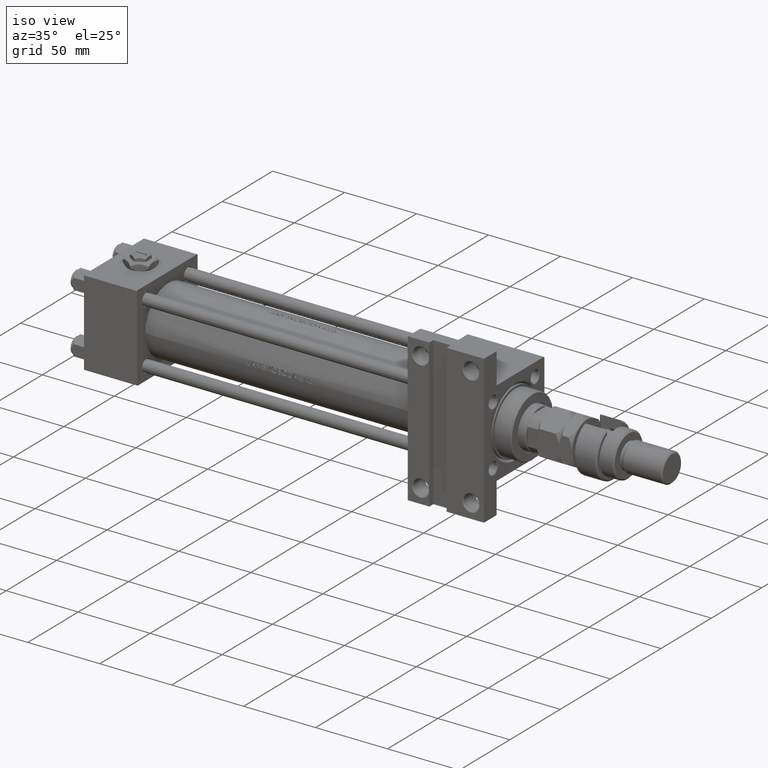
[diagram: clean part render]
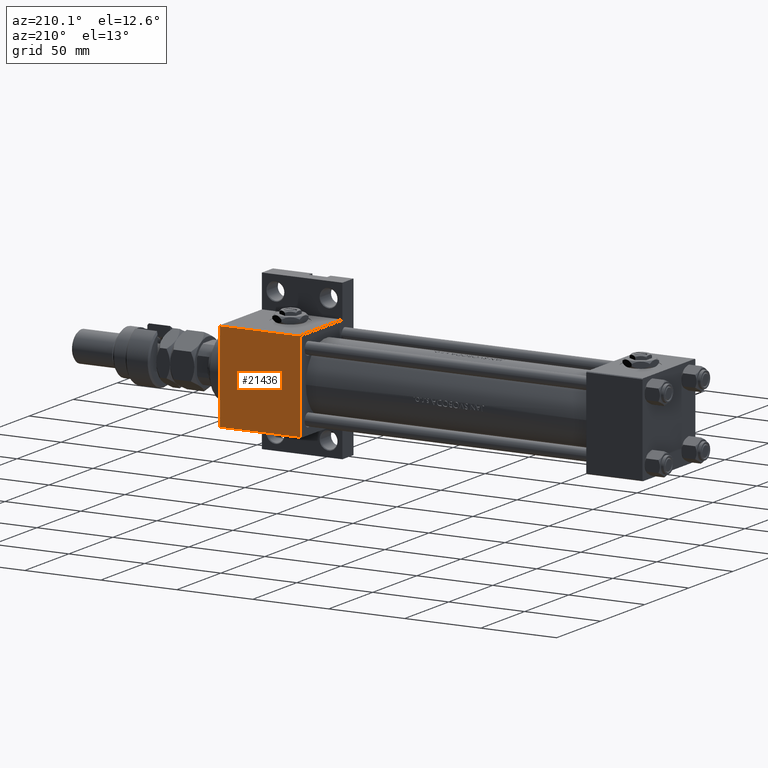
[diagram: tour spotlight — one face highlighted and labeled with its STEP entity id]
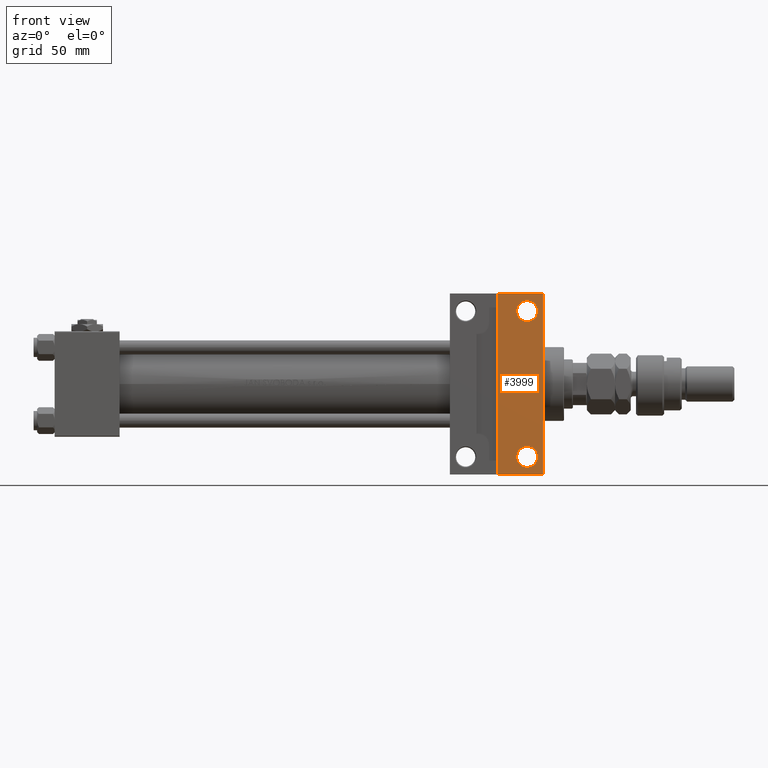
[diagram: tour spotlight — one face highlighted and labeled with its STEP entity id]
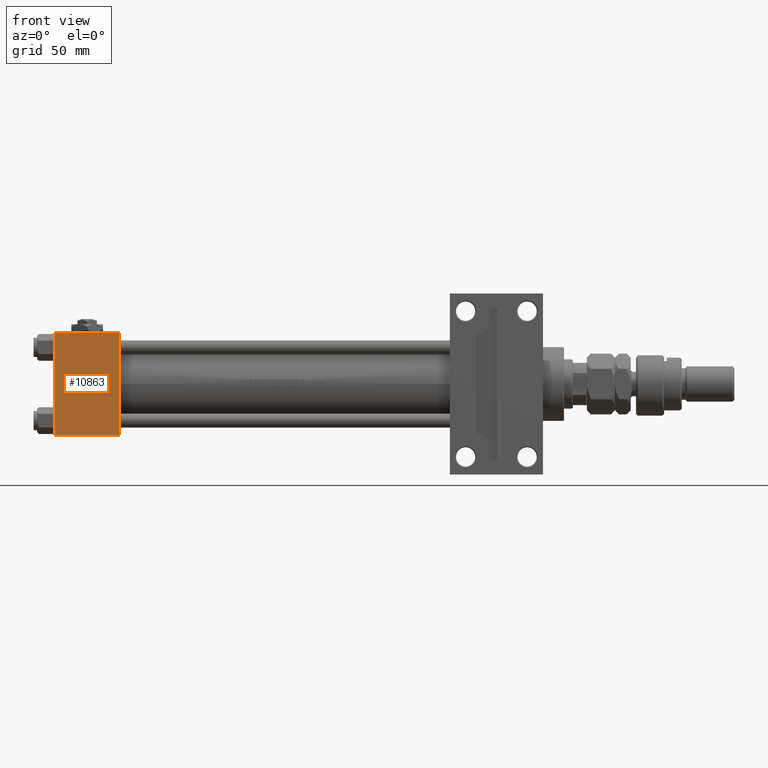
[diagram: tour spotlight — one face highlighted and labeled with its STEP entity id]
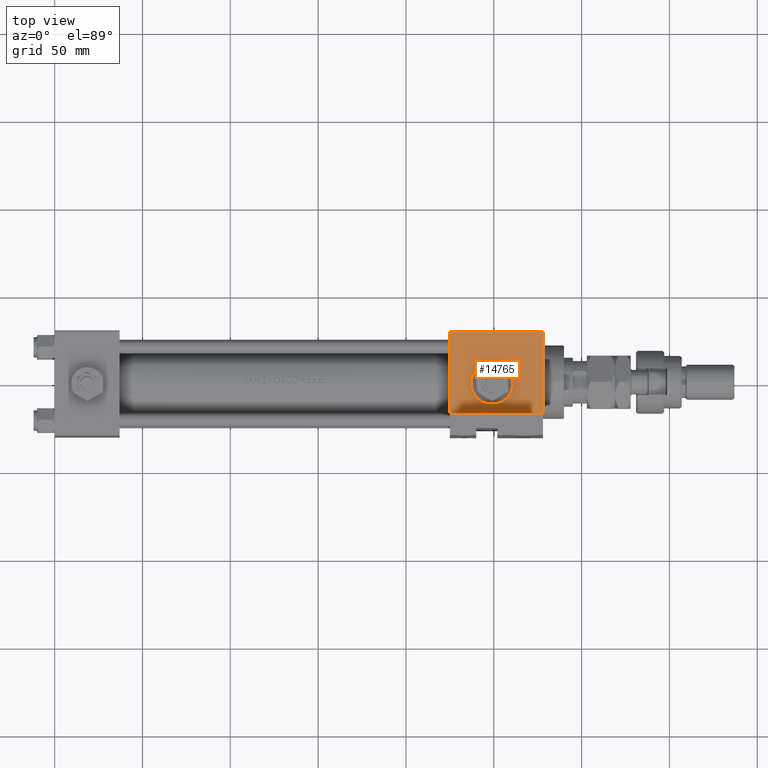
[diagram: tour spotlight — one face highlighted and labeled with its STEP entity id]
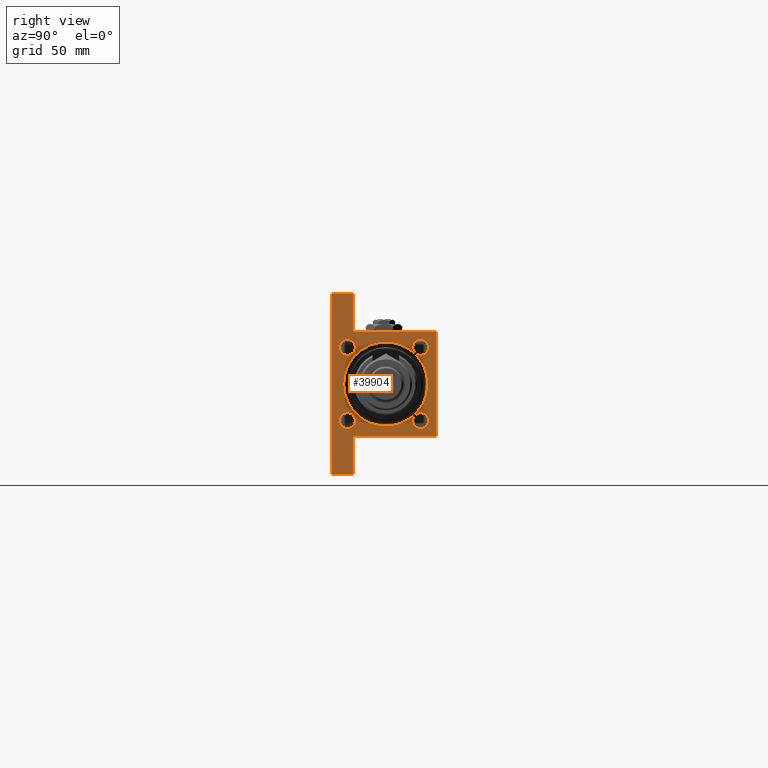
[diagram: tour spotlight — one face highlighted and labeled with its STEP entity id]
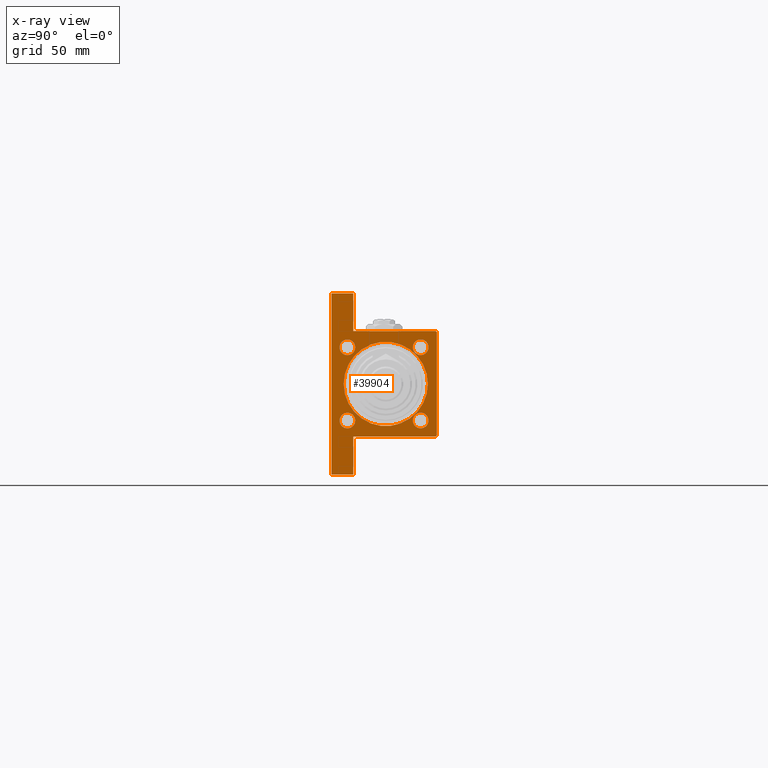
[diagram: x-ray of the same camera — body ghosted, this tour face saturated]
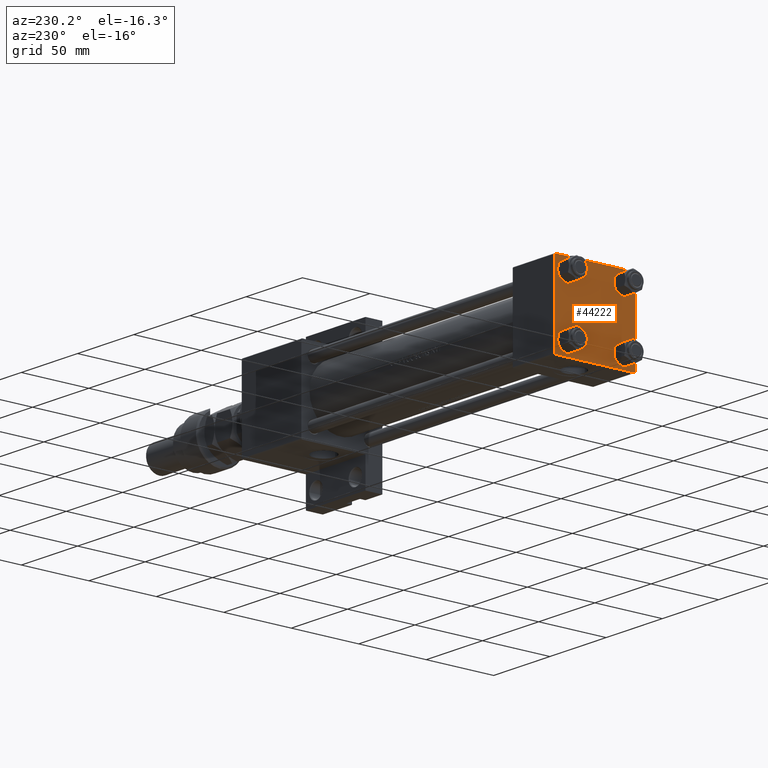
[diagram: tour spotlight — one face highlighted and labeled with its STEP entity id]
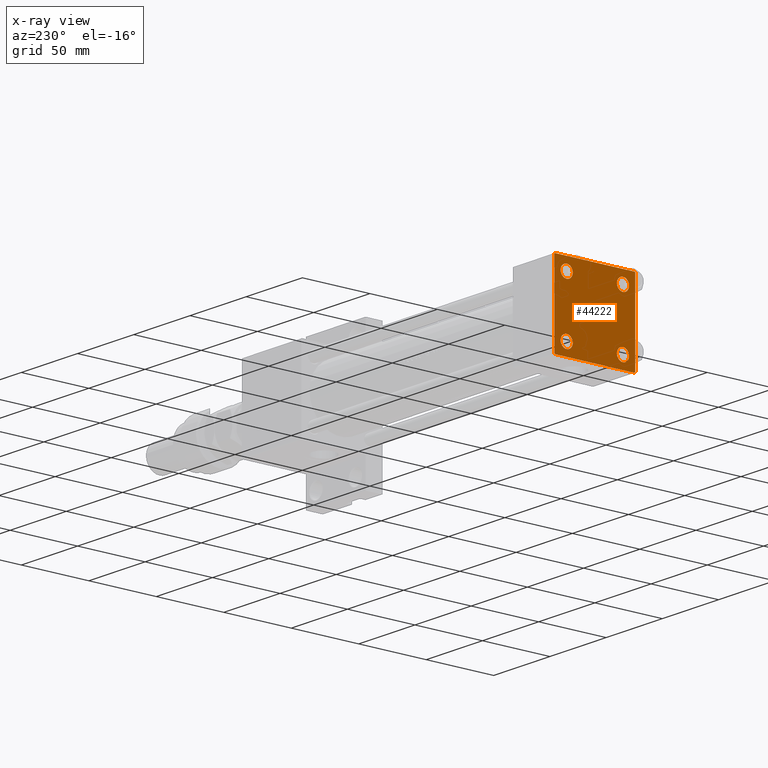
[diagram: x-ray of the same camera — body ghosted, this tour face saturated]
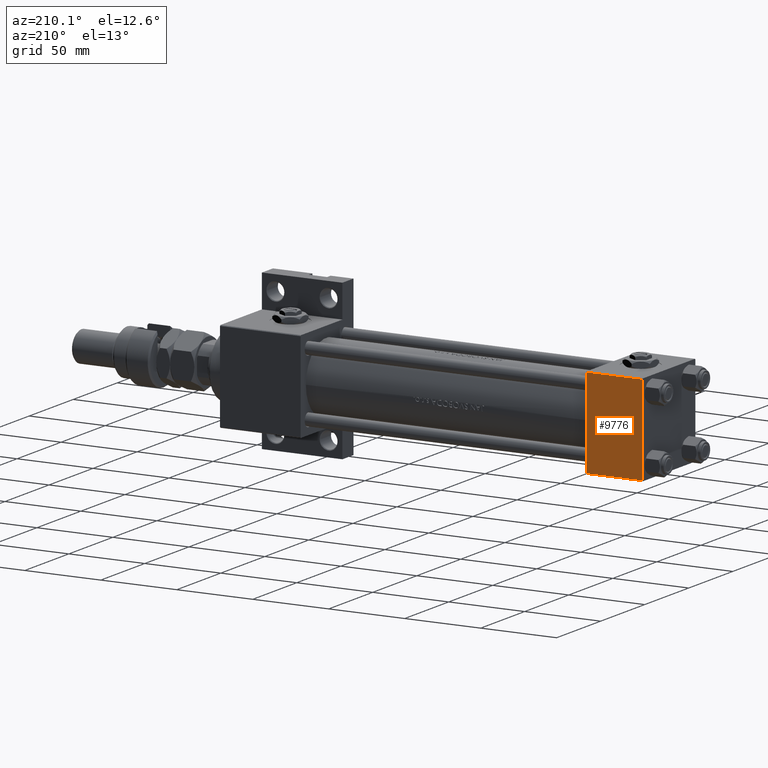
[diagram: tour spotlight — one face highlighted and labeled with its STEP entity id]
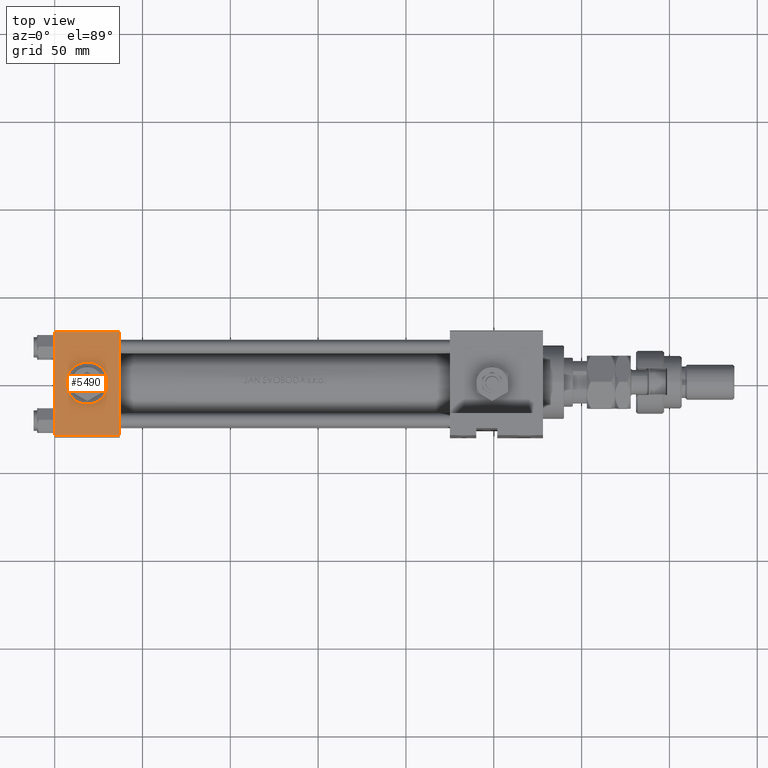
[diagram: tour spotlight — one face highlighted and labeled with its STEP entity id]
A machine part: a face-by-face anatomy tour. The part has 1300 B-rep faces; the first image is the clean iso view, then the 8 largest visible faces are spotlighted one at a time (largest first), each with its STEP entity span.

Face 1 — auxiliary view, entity #21436. In plain terms, the highlighted planar face has unit normal (0, -1, -0).
Definition (entity closure, byte-faithful):
#1885 = CARTESIAN_POINT ( 'NONE',  ( 278.0000000000000000, 29.50000000000000000, 30.00000000000000000 ) ) ;
#2104 = DIRECTION ( 'NONE',  ( 0.000000000000000000, -1.000000000000000000, -1.156482317317871478E-16 ) ) ;
#4670 = LINE ( 'NONE', #37523, #21446 ) ;
#4790 = CARTESIAN_POINT ( 'NONE',  ( 225.0000000000000000, -29.49999999999997158, 29.99999999999999289 ) ) ;
#5782 = FACE_OUTER_BOUND ( 'NONE', #25797, .T. ) ;
#8276 = EDGE_CURVE ( 'NONE', #43974, #30196, #47156, .T. ) ;
#9867 = ORIENTED_EDGE ( 'NONE', *, *, #8276, .T. ) ;
#10015 = DIRECTION ( 'NONE',  ( 0.000000000000000000, -1.000000000000000000, -1.156482317317871478E-16 ) ) ;
#12008 = EDGE_CURVE ( 'NONE', #29269, #19114, #4670, .T. ) ;
#14108 = LINE ( 'NONE', #30654, #40555 ) ;
#17477 = CARTESIAN_POINT ( 'NONE',  ( 278.0000000000000000, 30.00000000000000000, 30.00000000000000000 ) ) ;
#19114 = VERTEX_POINT ( 'NONE', #43355 ) ;
#19383 = ORIENTED_EDGE ( 'NONE', *, *, #12008, .T. ) ;
#21436 = ADVANCED_FACE ( 'NONE', ( #5782 ), #30735, .F. ) ;
#21446 = VECTOR ( 'NONE', #45907, 1000.000000000000000 ) ;
#21977 = LINE ( 'NONE', #47688, #39338 ) ;
#22280 = ORIENTED_EDGE ( 'NONE', *, *, #27105, .F. ) ;
#25494 = CARTESIAN_POINT ( 'NONE',  ( 278.0000000000000000, -29.49999999999997158, 29.99999999999999289 ) ) ;
#25797 = EDGE_LOOP ( 'NONE', ( #22280, #19383, #37007, #9867 ) ) ;
#26569 = CARTESIAN_POINT ( 'NONE',  ( 278.0000000000000000, -29.49999999999997158, 29.99999999999999289 ) ) ;
#27105 = EDGE_CURVE ( 'NONE', #29269, #30196, #21977, .T. ) ;
#29269 = VERTEX_POINT ( 'NONE', #1885 ) ;
#30196 = VERTEX_POINT ( 'NONE', #25494 ) ;
#30654 = CARTESIAN_POINT ( 'NONE',  ( 225.0000000000000000, 30.00000000000000000, 30.00000000000000000 ) ) ;
#30735 = PLANE ( 'NONE',  #52043 ) ;
#34030 = DIRECTION ( 'NONE',  ( 0.000000000000000000, 1.156482317317871478E-16, -1.000000000000000000 ) ) ;
#37007 = ORIENTED_EDGE ( 'NONE', *, *, #39747, .T. ) ;
#37523 = CARTESIAN_POINT ( 'NONE',  ( 225.0000000000000000, 29.50000000000000000, 30.00000000000000000 ) ) ;
#39338 = VECTOR ( 'NONE', #2104, 1000.000000000000000 ) ;
#39747 = EDGE_CURVE ( 'NONE', #19114, #43974, #14108, .T. ) ;
#40555 = VECTOR ( 'NONE', #10015, 1000.000000000000000 ) ;
#42668 = DIRECTION ( 'NONE',  ( 0.000000000000000000, 1.000000000000000000, 1.156482317317871478E-16 ) ) ;
#43355 = CARTESIAN_POINT ( 'NONE',  ( 225.0000000000000000, 29.50000000000000000, 30.00000000000000000 ) ) ;
#43974 = VERTEX_POINT ( 'NONE', #4790 ) ;
#45907 = DIRECTION ( 'NONE',  ( -1.000000000000000000, 0.000000000000000000, 0.000000000000000000 ) ) ;
#46193 = VECTOR ( 'NONE', #50166, 1000.000000000000000 ) ;
#47156 = LINE ( 'NONE', #26569, #46193 ) ;
#47688 = CARTESIAN_POINT ( 'NONE',  ( 278.0000000000000000, 30.00000000000000000, 30.00000000000000000 ) ) ;
#50166 = DIRECTION ( 'NONE',  ( 1.000000000000000000, 0.000000000000000000, 0.000000000000000000 ) ) ;
#52043 = AXIS2_PLACEMENT_3D ( 'NONE', #17477, #34030, #42668 ) ;

Face 2 — front view, entity #3999. In plain terms, the highlighted planar face has unit normal (0, -1, -0).
Definition (entity closure, byte-faithful):
#190 = EDGE_CURVE ( 'NONE', #47218, #46126, #6132, .T. ) ;
#558 = VERTEX_POINT ( 'NONE', #29587 ) ;
#3123 = EDGE_CURVE ( 'NONE', #49464, #558, #44926, .T. ) ;
#3363 = ORIENTED_EDGE ( 'NONE', *, *, #40572, .T. ) ;
#3626 = CARTESIAN_POINT ( 'NONE',  ( 278.0000000000000000, 51.49999999999996447, -29.99999999999999645 ) ) ;
#3999 = ADVANCED_FACE ( 'NONE', ( #37337, #41106, #50048 ), #20248, .T. ) ;
#4136 = VERTEX_POINT ( 'NONE', #39457 ) ;
#5420 = CARTESIAN_POINT ( 'NONE',  ( 225.0000000000000000, -51.50000000000002132, -29.99999999999999645 ) ) ;
#6132 = LINE ( 'NONE', #43554, #27807 ) ;
#7057 = ORIENTED_EDGE ( 'NONE', *, *, #44245, .T. ) ;
#7393 = DIRECTION ( 'NONE',  ( 1.000000000000000000, -2.618450529776311274E-16, 0.000000000000000000 ) ) ;
#10067 = ORIENTED_EDGE ( 'NONE', *, *, #3123, .F. ) ;
#10770 = ORIENTED_EDGE ( 'NONE', *, *, #37875, .T. ) ;
#12362 = DIRECTION ( 'NONE',  ( -0.000000000000000000, -1.000000000000000000, -0.000000000000000000 ) ) ;
#12579 = EDGE_CURVE ( 'NONE', #46126, #558, #15096, .T. ) ;
#13295 = DIRECTION ( 'NONE',  ( -0.000000000000000000, -1.156482317317871478E-16, 1.000000000000000000 ) ) ;
#15096 = LINE ( 'NONE', #5420, #19728 ) ;
#16031 = VERTEX_POINT ( 'NONE', #23907 ) ;
#16172 = CARTESIAN_POINT ( 'NONE',  ( 252.0000000000000000, -51.49999999999997158, -29.99999999999999645 ) ) ;
#17110 = CARTESIAN_POINT ( 'NONE',  ( 269.0000000000000000, -41.50000000000000000, -30.00000000000000000 ) ) ;
#18072 = CARTESIAN_POINT ( 'NONE',  ( 274.9994999999999550, 41.50000000000000000, -29.99999999999999289 ) ) ;
#18857 = CIRCLE ( 'NONE', #30973, 5.999499999999907907 ) ;
#19613 = LINE ( 'NONE', #53180, #43348 ) ;
#19728 = VECTOR ( 'NONE', #48157, 1000.000000000000000 ) ;
#20170 = ORIENTED_EDGE ( 'NONE', *, *, #190, .T. ) ;
#20248 = PLANE ( 'NONE',  #21060 ) ;
#20459 = CARTESIAN_POINT ( 'NONE',  ( 278.0000000000000000, -51.50000000000002132, -29.99999999999999645 ) ) ;
#20723 = AXIS2_PLACEMENT_3D ( 'NONE', #49871, #48794, #36614 ) ;
#21060 = AXIS2_PLACEMENT_3D ( 'NONE', #53547, #49245, #28365 ) ;
#21794 = ORIENTED_EDGE ( 'NONE', *, *, #45103, .T. ) ;
#22232 = DIRECTION ( 'NONE',  ( 0.000000000000000000, 1.000000000000000000, 0.000000000000000000 ) ) ;
#23780 = DIRECTION ( 'NONE',  ( -0.000000000000000000, -1.156482317317871478E-16, 1.000000000000000000 ) ) ;
#23907 = CARTESIAN_POINT ( 'NONE',  ( 274.9994999999999550, -41.50000000000000000, -30.00000000000000000 ) ) ;
#24680 = AXIS2_PLACEMENT_3D ( 'NONE', #41685, #49563, #37916 ) ;
#27807 = VECTOR ( 'NONE', #42487, 1000.000000000000000 ) ;
#28365 = DIRECTION ( 'NONE',  ( 0.000000000000000000, 1.000000000000000000, 1.156482317317871478E-16 ) ) ;
#28525 = EDGE_LOOP ( 'NONE', ( #3363, #21794 ) ) ;
#29033 = AXIS2_PLACEMENT_3D ( 'NONE', #44382, #23780, #33003 ) ;
#29587 = CARTESIAN_POINT ( 'NONE',  ( 252.0000000000000000, -51.49999999999997158, -29.99999999999999645 ) ) ;
#30031 = CARTESIAN_POINT ( 'NONE',  ( 263.0005000000001019, -41.50000000000000000, -30.00000000000000000 ) ) ;
#30348 = ORIENTED_EDGE ( 'NONE', *, *, #45910, .T. ) ;
#30729 = EDGE_LOOP ( 'NONE', ( #30348, #10770 ) ) ;
#30973 = AXIS2_PLACEMENT_3D ( 'NONE', #17110, #13295, #22232 ) ;
#32777 = EDGE_LOOP ( 'NONE', ( #10067, #7057, #20170, #41717 ) ) ;
#33003 = DIRECTION ( 'NONE',  ( 0.000000000000000000, 1.000000000000000000, 0.000000000000000000 ) ) ;
#36139 = VERTEX_POINT ( 'NONE', #18072 ) ;
#36614 = DIRECTION ( 'NONE',  ( 0.000000000000000000, 1.000000000000000000, 0.000000000000000000 ) ) ;
#36785 = CIRCLE ( 'NONE', #24680, 5.999499999999907907 ) ;
#36964 = VERTEX_POINT ( 'NONE', #30031 ) ;
#37185 = CIRCLE ( 'NONE', #20723, 5.999499999999907907 ) ;
#37337 = FACE_OUTER_BOUND ( 'NONE', #32777, .T. ) ;
#37875 = EDGE_CURVE ( 'NONE', #16031, #36964, #18857, .T. ) ;
#37916 = DIRECTION ( 'NONE',  ( 0.000000000000000000, 1.000000000000000000, 0.000000000000000000 ) ) ;
#39457 = CARTESIAN_POINT ( 'NONE',  ( 263.0005000000001019, 41.50000000000000000, -29.99999999999999289 ) ) ;
#40572 = EDGE_CURVE ( 'NONE', #4136, #36139, #37185, .T. ) ;
#41106 = FACE_BOUND ( 'NONE', #30729, .T. ) ;
#41685 = CARTESIAN_POINT ( 'NONE',  ( 269.0000000000000000, 41.50000000000000000, -29.99999999999999289 ) ) ;
#41717 = ORIENTED_EDGE ( 'NONE', *, *, #12579, .T. ) ;
#42039 = CIRCLE ( 'NONE', #29033, 5.999499999999907907 ) ;
#42487 = DIRECTION ( 'NONE',  ( 0.000000000000000000, -1.000000000000000000, -1.156482317317871478E-16 ) ) ;
#43348 = VECTOR ( 'NONE', #7393, 1000.000000000000000 ) ;
#43554 = CARTESIAN_POINT ( 'NONE',  ( 278.0000000000000000, 30.00000000000000000, -29.99999999999999289 ) ) ;
#44245 = EDGE_CURVE ( 'NONE', #49464, #47218, #19613, .T. ) ;
#44382 = CARTESIAN_POINT ( 'NONE',  ( 269.0000000000000000, -41.50000000000000000, -30.00000000000000000 ) ) ;
#44926 = LINE ( 'NONE', #16172, #53013 ) ;
#45103 = EDGE_CURVE ( 'NONE', #36139, #4136, #36785, .T. ) ;
#45910 = EDGE_CURVE ( 'NONE', #36964, #16031, #42039, .T. ) ;
#46126 = VERTEX_POINT ( 'NONE', #20459 ) ;
#46607 = CARTESIAN_POINT ( 'NONE',  ( 252.0000000000000000, 51.49999999999997868, -29.99999999999999645 ) ) ;
#47218 = VERTEX_POINT ( 'NONE', #3626 ) ;
#48157 = DIRECTION ( 'NONE',  ( -1.000000000000000000, -0.000000000000000000, -0.000000000000000000 ) ) ;
#48794 = DIRECTION ( 'NONE',  ( -0.000000000000000000, -1.156482317317871478E-16, 1.000000000000000000 ) ) ;
#49245 = DIRECTION ( 'NONE',  ( 0.000000000000000000, 1.156482317317871478E-16, -1.000000000000000000 ) ) ;
#49464 = VERTEX_POINT ( 'NONE', #46607 ) ;
#49563 = DIRECTION ( 'NONE',  ( -0.000000000000000000, -1.156482317317871478E-16, 1.000000000000000000 ) ) ;
#49871 = CARTESIAN_POINT ( 'NONE',  ( 269.0000000000000000, 41.50000000000000000, -29.99999999999999289 ) ) ;
#50048 = FACE_BOUND ( 'NONE', #28525, .T. ) ;
#53013 = VECTOR ( 'NONE', #12362, 1000.000000000000000 ) ;
#53180 = CARTESIAN_POINT ( 'NONE',  ( 225.0000000000000000, 51.49999999999997868, -29.99999999999999645 ) ) ;
#53547 = CARTESIAN_POINT ( 'NONE',  ( 278.0000000000000000, 30.00000000000000000, -29.99999999999999289 ) ) ;

Face 3 — front view, entity #10863. In plain terms, the highlighted planar face has unit normal (0, -1, -0).
Definition (entity closure, byte-faithful):
#1445 = VECTOR ( 'NONE', #18067, 1000.000000000000000 ) ;
#4714 = CARTESIAN_POINT ( 'NONE',  ( 37.00000000000000000, 29.49999999999997868, -30.00000000000000000 ) ) ;
#5686 = VECTOR ( 'NONE', #47071, 1000.000000000000000 ) ;
#6707 = CARTESIAN_POINT ( 'NONE',  ( 0.000000000000000000, -29.50000000000000000, -30.00000000000000711 ) ) ;
#10863 = ADVANCED_FACE ( 'NONE', ( #26769 ), #22695, .T. ) ;
#14002 = CARTESIAN_POINT ( 'NONE',  ( 0.000000000000000000, 29.99999999999999289, -30.00000000000000000 ) ) ;
#16279 = CARTESIAN_POINT ( 'NONE',  ( 37.00000000000000000, 29.99999999999999289, -30.00000000000000000 ) ) ;
#16387 = VERTEX_POINT ( 'NONE', #16800 ) ;
#16747 = CARTESIAN_POINT ( 'NONE',  ( 0.000000000000000000, 29.49999999999997868, -30.00000000000000000 ) ) ;
#16800 = CARTESIAN_POINT ( 'NONE',  ( 37.00000000000000000, 29.49999999999997868, -30.00000000000000000 ) ) ;
#18067 = DIRECTION ( 'NONE',  ( -1.000000000000000000, 0.000000000000000000, 0.000000000000000000 ) ) ;
#19818 = AXIS2_PLACEMENT_3D ( 'NONE', #47893, #26242, #38979 ) ;
#20113 = VERTEX_POINT ( 'NONE', #6707 ) ;
#21073 = LINE ( 'NONE', #50593, #1445 ) ;
#21805 = EDGE_LOOP ( 'NONE', ( #42219, #49339, #39501, #38595 ) ) ;
#22171 = EDGE_CURVE ( 'NONE', #46914, #16387, #33776, .T. ) ;
#22695 = PLANE ( 'NONE',  #19818 ) ;
#26242 = DIRECTION ( 'NONE',  ( 0.000000000000000000, 1.156482317317871725E-16, -1.000000000000000000 ) ) ;
#26769 = FACE_OUTER_BOUND ( 'NONE', #21805, .T. ) ;
#28466 = LINE ( 'NONE', #16279, #32842 ) ;
#31446 = EDGE_CURVE ( 'NONE', #46914, #20113, #39212, .T. ) ;
#32842 = VECTOR ( 'NONE', #53649, 1000.000000000000000 ) ;
#32965 = DIRECTION ( 'NONE',  ( 1.000000000000000000, 0.000000000000000000, 0.000000000000000000 ) ) ;
#33776 = LINE ( 'NONE', #4714, #44321 ) ;
#38595 = ORIENTED_EDGE ( 'NONE', *, *, #52779, .T. ) ;
#38979 = DIRECTION ( 'NONE',  ( 0.000000000000000000, 1.000000000000000000, 1.156482317317871725E-16 ) ) ;
#39212 = LINE ( 'NONE', #14002, #5686 ) ;
#39501 = ORIENTED_EDGE ( 'NONE', *, *, #40471, .T. ) ;
#40471 = EDGE_CURVE ( 'NONE', #16387, #42370, #28466, .T. ) ;
#42219 = ORIENTED_EDGE ( 'NONE', *, *, #31446, .F. ) ;
#42370 = VERTEX_POINT ( 'NONE', #50556 ) ;
#44321 = VECTOR ( 'NONE', #32965, 1000.000000000000000 ) ;
#46914 = VERTEX_POINT ( 'NONE', #16747 ) ;
#47071 = DIRECTION ( 'NONE',  ( 0.000000000000000000, -1.000000000000000000, -1.156482317317871725E-16 ) ) ;
#47893 = CARTESIAN_POINT ( 'NONE',  ( 37.00000000000000000, 29.99999999999999289, -30.00000000000000000 ) ) ;
#49339 = ORIENTED_EDGE ( 'NONE', *, *, #22171, .T. ) ;
#50556 = CARTESIAN_POINT ( 'NONE',  ( 37.00000000000000000, -29.50000000000000000, -30.00000000000000711 ) ) ;
#50593 = CARTESIAN_POINT ( 'NONE',  ( 0.000000000000000000, -29.50000000000001066, -30.00000000000000711 ) ) ;
#52779 = EDGE_CURVE ( 'NONE', #42370, #20113, #21073, .T. ) ;
#53649 = DIRECTION ( 'NONE',  ( 0.000000000000000000, -1.000000000000000000, -1.156482317317871725E-16 ) ) ;

Face 4 — top view, entity #14765. In plain terms, the highlighted planar face has unit normal (0, 0, -1).
Definition (entity closure, byte-faithful):
#485 = ORIENTED_EDGE ( 'NONE', *, *, #28839, .F. ) ;
#965 = ORIENTED_EDGE ( 'NONE', *, *, #33346, .T. ) ;
#1071 = LINE ( 'NONE', #17651, #4545 ) ;
#3594 = FACE_BOUND ( 'NONE', #46987, .T. ) ;
#3680 = EDGE_CURVE ( 'NONE', #52999, #46395, #1071, .T. ) ;
#4289 = EDGE_CURVE ( 'NONE', #5619, #23383, #20936, .T. ) ;
#4545 = VECTOR ( 'NONE', #13562, 1000.000000000000000 ) ;
#4760 = CARTESIAN_POINT ( 'NONE',  ( 278.0000000000000000, -30.00000000000000000, 29.49999999999999289 ) ) ;
#5143 = CARTESIAN_POINT ( 'NONE',  ( 225.0000000000000000, -30.00000000000000000, 29.99999999999999289 ) ) ;
#5619 = VERTEX_POINT ( 'NONE', #45161 ) ;
#8851 = ORIENTED_EDGE ( 'NONE', *, *, #46047, .T. ) ;
#9759 = CARTESIAN_POINT ( 'NONE',  ( 278.0000000000000000, -30.00000000000000000, -17.49999999999998224 ) ) ;
#10079 = DIRECTION ( 'NONE',  ( 0.000000000000000000, 0.000000000000000000, -1.000000000000000000 ) ) ;
#10805 = CIRCLE ( 'NONE', #16032, 12.00000000000003197 ) ;
#12236 = CARTESIAN_POINT ( 'NONE',  ( 249.0000000000000000, -30.00000000000000000, 12.00000000000003197 ) ) ;
#12289 = FACE_OUTER_BOUND ( 'NONE', #18809, .T. ) ;
#13562 = DIRECTION ( 'NONE',  ( 0.000000000000000000, 0.000000000000000000, -1.000000000000000000 ) ) ;
#13778 = AXIS2_PLACEMENT_3D ( 'NONE', #49444, #24784, #48621 ) ;
#14082 = LINE ( 'NONE', #5143, #30783 ) ;
#14589 = DIRECTION ( 'NONE',  ( 0.000000000000000000, 0.000000000000000000, -1.000000000000000000 ) ) ;
#14765 = ADVANCED_FACE ( 'NONE', ( #3594, #12289 ), #16097, .F. ) ;
#16032 = AXIS2_PLACEMENT_3D ( 'NONE', #31936, #40320, #14589 ) ;
#16097 = PLANE ( 'NONE',  #13778 ) ;
#17651 = CARTESIAN_POINT ( 'NONE',  ( 278.0000000000000000, -30.00000000000000000, 29.99999999999999289 ) ) ;
#18809 = EDGE_LOOP ( 'NONE', ( #45569, #8851, #965, #45929 ) ) ;
#20801 = DIRECTION ( 'NONE',  ( -1.000000000000000000, 0.000000000000000000, 0.000000000000000000 ) ) ;
#20936 = CIRCLE ( 'NONE', #51213, 12.00000000000003197 ) ;
#21449 = LINE ( 'NONE', #38001, #32764 ) ;
#21709 = DIRECTION ( 'NONE',  ( 0.000000000000000000, 0.000000000000000000, -1.000000000000000000 ) ) ;
#23383 = VERTEX_POINT ( 'NONE', #12236 ) ;
#24461 = VERTEX_POINT ( 'NONE', #35005 ) ;
#24784 = DIRECTION ( 'NONE',  ( -0.000000000000000000, 1.000000000000000000, 0.000000000000000000 ) ) ;
#25293 = VERTEX_POINT ( 'NONE', #31882 ) ;
#25401 = LINE ( 'NONE', #4760, #28171 ) ;
#28171 = VECTOR ( 'NONE', #20801, 1000.000000000000000 ) ;
#28839 = EDGE_CURVE ( 'NONE', #23383, #5619, #10805, .T. ) ;
#30783 = VECTOR ( 'NONE', #21709, 1000.000000000000000 ) ;
#31870 = CARTESIAN_POINT ( 'NONE',  ( 278.0000000000000000, -30.00000000000000000, 29.49999999999999289 ) ) ;
#31882 = CARTESIAN_POINT ( 'NONE',  ( 225.0000000000000000, -30.00000000000000000, 29.49999999999999289 ) ) ;
#31936 = CARTESIAN_POINT ( 'NONE',  ( 249.0000000000000000, -30.00000000000000000, 0.000000000000000000 ) ) ;
#32764 = VECTOR ( 'NONE', #33941, 1000.000000000000000 ) ;
#33346 = EDGE_CURVE ( 'NONE', #25293, #24461, #14082, .T. ) ;
#33941 = DIRECTION ( 'NONE',  ( 1.000000000000000000, -1.309225264888155637E-16, 0.000000000000000000 ) ) ;
#35005 = CARTESIAN_POINT ( 'NONE',  ( 225.0000000000000000, -30.00000000000000000, -17.49999999999999645 ) ) ;
#38001 = CARTESIAN_POINT ( 'NONE',  ( 225.0000000000000000, -30.00000000000000000, -17.49999999999999645 ) ) ;
#38751 = EDGE_CURVE ( 'NONE', #24461, #46395, #21449, .T. ) ;
#39654 = DIRECTION ( 'NONE',  ( 0.000000000000000000, -1.000000000000000000, -8.673617379884036705E-17 ) ) ;
#40320 = DIRECTION ( 'NONE',  ( 0.000000000000000000, -1.000000000000000000, -8.673617379884036705E-17 ) ) ;
#43976 = CARTESIAN_POINT ( 'NONE',  ( 249.0000000000000000, -30.00000000000000000, 0.000000000000000000 ) ) ;
#45161 = CARTESIAN_POINT ( 'NONE',  ( 249.0000000000000000, -30.00000000000000000, -12.00000000000003197 ) ) ;
#45569 = ORIENTED_EDGE ( 'NONE', *, *, #3680, .F. ) ;
#45918 = ORIENTED_EDGE ( 'NONE', *, *, #4289, .F. ) ;
#45929 = ORIENTED_EDGE ( 'NONE', *, *, #38751, .T. ) ;
#46047 = EDGE_CURVE ( 'NONE', #52999, #25293, #25401, .T. ) ;
#46395 = VERTEX_POINT ( 'NONE', #9759 ) ;
#46987 = EDGE_LOOP ( 'NONE', ( #45918, #485 ) ) ;
#48621 = DIRECTION ( 'NONE',  ( 0.000000000000000000, -0.000000000000000000, 1.000000000000000000 ) ) ;
#49444 = CARTESIAN_POINT ( 'NONE',  ( 278.0000000000000000, -30.00000000000000000, 29.99999999999999289 ) ) ;
#51213 = AXIS2_PLACEMENT_3D ( 'NONE', #43976, #39654, #10079 ) ;
#52999 = VERTEX_POINT ( 'NONE', #31870 ) ;

Face 5 — right view, entity #39904. An x-ray twin of the same camera follows (body ghosted, this face saturated) — the face is partly hidden behind the body. In plain terms, the highlighted planar face has unit normal (-1, 0, -0).
Definition (entity closure, byte-faithful):
#12 = VERTEX_POINT ( 'NONE', #48461 ) ;
#190 = EDGE_CURVE ( 'NONE', #47218, #46126, #6132, .T. ) ;
#1071 = LINE ( 'NONE', #17651, #4545 ) ;
#1199 = CARTESIAN_POINT ( 'NONE',  ( 278.0000000000000000, 20.84999999999999787, 20.85000000000000142 ) ) ;
#1241 = CARTESIAN_POINT ( 'NONE',  ( 278.0000000000000000, -20.85000000000000142, -16.34999999999999787 ) ) ;
#1513 = VECTOR ( 'NONE', #29371, 1000.000000000000114 ) ;
#1557 = VERTEX_POINT ( 'NONE', #23412 ) ;
#1764 = CARTESIAN_POINT ( 'NONE',  ( 278.0000000000000000, 20.84999999999999787, -25.35000000000000497 ) ) ;
#1885 = CARTESIAN_POINT ( 'NONE',  ( 278.0000000000000000, 29.50000000000000000, 30.00000000000000000 ) ) ;
#2101 = CARTESIAN_POINT ( 'NONE',  ( 278.0000000000000000, 20.84999999999999787, -16.34999999999999787 ) ) ;
#2104 = DIRECTION ( 'NONE',  ( 0.000000000000000000, -1.000000000000000000, -1.156482317317871478E-16 ) ) ;
#3205 = CIRCLE ( 'NONE', #33594, 4.500000000000003553 ) ;
#3297 = VECTOR ( 'NONE', #44264, 1000.000000000000000 ) ;
#3310 = LINE ( 'NONE', #48601, #18656 ) ;
#3626 = CARTESIAN_POINT ( 'NONE',  ( 278.0000000000000000, 51.49999999999996447, -29.99999999999999645 ) ) ;
#3627 = ORIENTED_EDGE ( 'NONE', *, *, #38361, .T. ) ;
#3680 = EDGE_CURVE ( 'NONE', #52999, #46395, #1071, .T. ) ;
#3805 = ORIENTED_EDGE ( 'NONE', *, *, #32238, .T. ) ;
#4233 = CARTESIAN_POINT ( 'NONE',  ( 278.0000000000000000, 0.000000000000000000, 1.000000000000007772 ) ) ;
#4304 = VERTEX_POINT ( 'NONE', #23390 ) ;
#4545 = VECTOR ( 'NONE', #13562, 1000.000000000000000 ) ;
#4794 = ORIENTED_EDGE ( 'NONE', *, *, #36760, .T. ) ;
#4871 = AXIS2_PLACEMENT_3D ( 'NONE', #11683, #40187, #36134 ) ;
#5016 = DIRECTION ( 'NONE',  ( -1.000000000000000000, 0.000000000000000000, -0.000000000000000000 ) ) ;
#5879 = VERTEX_POINT ( 'NONE', #39944 ) ;
#6085 = CARTESIAN_POINT ( 'NONE',  ( 278.0000000000000000, -20.84999999999999432, 25.35000000000000497 ) ) ;
#6132 = LINE ( 'NONE', #43554, #27807 ) ;
#6913 = VERTEX_POINT ( 'NONE', #45375 ) ;
#7363 = VERTEX_POINT ( 'NONE', #2101 ) ;
#8038 = CARTESIAN_POINT ( 'NONE',  ( 278.0000000000000000, -51.50000000000002132, -17.49999999999999645 ) ) ;
#8388 = CARTESIAN_POINT ( 'NONE',  ( 278.0000000000000000, 20.84999999999999787, -20.85000000000000142 ) ) ;
#9551 = CARTESIAN_POINT ( 'NONE',  ( 278.0000000000000000, 51.49999999999996447, -17.49999999999999645 ) ) ;
#9759 = CARTESIAN_POINT ( 'NONE',  ( 278.0000000000000000, -30.00000000000000000, -17.49999999999998224 ) ) ;
#10653 = DIRECTION ( 'NONE',  ( 0.000000000000000000, 0.000000000000000000, -1.000000000000000000 ) ) ;
#10997 = CIRCLE ( 'NONE', #22258, 4.500000000000003553 ) ;
#11163 = CARTESIAN_POINT ( 'NONE',  ( 278.0000000000000000, 51.49999999999996447, -17.49999999999999645 ) ) ;
#11274 = DIRECTION ( 'NONE',  ( 0.000000000000000000, 0.000000000000000000, 1.000000000000000000 ) ) ;
#11402 = DIRECTION ( 'NONE',  ( -0.000000000000000000, -0.7071067811865672237, -0.7071067811865279218 ) ) ;
#11683 = CARTESIAN_POINT ( 'NONE',  ( 278.0000000000000000, -20.84999999999999432, 20.85000000000000142 ) ) ;
#11771 = VERTEX_POINT ( 'NONE', #6085 ) ;
#11950 = ORIENTED_EDGE ( 'NONE', *, *, #29471, .T. ) ;
#12119 = FACE_BOUND ( 'NONE', #32477, .T. ) ;
#12383 = DIRECTION ( 'NONE',  ( 0.000000000000000000, 0.000000000000000000, 1.000000000000000000 ) ) ;
#12407 = ORIENTED_EDGE ( 'NONE', *, *, #40135, .F. ) ;
#12489 = ORIENTED_EDGE ( 'NONE', *, *, #37316, .T. ) ;
#12715 = DIRECTION ( 'NONE',  ( -1.000000000000000000, 0.000000000000000000, -0.000000000000000000 ) ) ;
#13007 = EDGE_CURVE ( 'NONE', #16660, #29269, #13630, .T. ) ;
#13360 = CARTESIAN_POINT ( 'NONE',  ( 278.0000000000000000, 29.50000000000000000, 30.00000000000000000 ) ) ;
#13562 = DIRECTION ( 'NONE',  ( 0.000000000000000000, 0.000000000000000000, -1.000000000000000000 ) ) ;
#13629 = AXIS2_PLACEMENT_3D ( 'NONE', #46075, #12715, #41729 ) ;
#13630 = LINE ( 'NONE', #13360, #1513 ) ;
#13815 = EDGE_CURVE ( 'NONE', #12, #49073, #25321, .T. ) ;
#14405 = CIRCLE ( 'NONE', #36097, 4.500000000000003553 ) ;
#14734 = ORIENTED_EDGE ( 'NONE', *, *, #32873, .T. ) ;
#15297 = AXIS2_PLACEMENT_3D ( 'NONE', #4233, #20000, #12383 ) ;
#15394 = VERTEX_POINT ( 'NONE', #46786 ) ;
#15658 = CARTESIAN_POINT ( 'NONE',  ( 278.0000000000000000, 0.000000000000000000, 0.000000000000000000 ) ) ;
#16003 = DIRECTION ( 'NONE',  ( 0.000000000000000000, 0.000000000000000000, 1.000000000000000000 ) ) ;
#16236 = CIRCLE ( 'NONE', #13629, 24.00000000000002487 ) ;
#16487 = PLANE ( 'NONE',  #26715 ) ;
#16592 = ORIENTED_EDGE ( 'NONE', *, *, #190, .F. ) ;
#16660 = VERTEX_POINT ( 'NONE', #41111 ) ;
#16997 = EDGE_LOOP ( 'NONE', ( #11950, #52711 ) ) ;
#17087 = CIRCLE ( 'NONE', #36124, 4.500000000000003553 ) ;
#17651 = CARTESIAN_POINT ( 'NONE',  ( 278.0000000000000000, -30.00000000000000000, 29.99999999999999289 ) ) ;
#18329 = AXIS2_PLACEMENT_3D ( 'NONE', #28377, #40581, #11274 ) ;
#18656 = VECTOR ( 'NONE', #10653, 1000.000000000000000 ) ;
#19344 = LINE ( 'NONE', #11163, #3297 ) ;
#19556 = CARTESIAN_POINT ( 'NONE',  ( 278.0000000000000000, -51.50000000000002132, -17.49999999999999645 ) ) ;
#19603 = EDGE_CURVE ( 'NONE', #30196, #52999, #20378, .T. ) ;
#19724 = DIRECTION ( 'NONE',  ( -1.000000000000000000, 0.000000000000000000, -0.000000000000000000 ) ) ;
#19806 = CARTESIAN_POINT ( 'NONE',  ( 278.0000000000000000, -20.85000000000000142, -20.85000000000000142 ) ) ;
#20000 = DIRECTION ( 'NONE',  ( -1.000000000000000000, 0.000000000000000000, -0.000000000000000000 ) ) ;
#20378 = LINE ( 'NONE', #49380, #41771 ) ;
#20459 = CARTESIAN_POINT ( 'NONE',  ( 278.0000000000000000, -51.50000000000002132, -29.99999999999999645 ) ) ;
#20857 = EDGE_CURVE ( 'NONE', #11771, #6913, #35652, .T. ) ;
#21545 = DIRECTION ( 'NONE',  ( 0.000000000000000000, 0.000000000000000000, 1.000000000000000000 ) ) ;
#21691 = ORIENTED_EDGE ( 'NONE', *, *, #22417, .F. ) ;
#21977 = LINE ( 'NONE', #47688, #39338 ) ;
#22258 = AXIS2_PLACEMENT_3D ( 'NONE', #1199, #5016, #34606 ) ;
#22417 = EDGE_CURVE ( 'NONE', #16660, #49073, #34205, .T. ) ;
#23321 = DIRECTION ( 'NONE',  ( 0.000000000000000000, 0.000000000000000000, -1.000000000000000000 ) ) ;
#23390 = CARTESIAN_POINT ( 'NONE',  ( 278.0000000000000000, 20.84999999999999787, 16.34999999999999787 ) ) ;
#23412 = CARTESIAN_POINT ( 'NONE',  ( 278.0000000000000000, 20.84999999999999787, 25.35000000000000497 ) ) ;
#23920 = CIRCLE ( 'NONE', #4871, 4.500000000000003553 ) ;
#24518 = DIRECTION ( 'NONE',  ( 0.000000000000000000, 0.000000000000000000, 1.000000000000000000 ) ) ;
#24597 = VECTOR ( 'NONE', #32295, 1000.000000000000000 ) ;
#24881 = FACE_BOUND ( 'NONE', #48307, .T. ) ;
#25321 = LINE ( 'NONE', #9551, #31897 ) ;
#25494 = CARTESIAN_POINT ( 'NONE',  ( 278.0000000000000000, -29.49999999999997158, 29.99999999999999289 ) ) ;
#25822 = ORIENTED_EDGE ( 'NONE', *, *, #19603, .T. ) ;
#26715 = AXIS2_PLACEMENT_3D ( 'NONE', #15658, #19724, #48714 ) ;
#26978 = EDGE_CURVE ( 'NONE', #46395, #39322, #44756, .T. ) ;
#27105 = EDGE_CURVE ( 'NONE', #29269, #30196, #21977, .T. ) ;
#27780 = DIRECTION ( 'NONE',  ( 0.000000000000000000, 0.000000000000000000, 1.000000000000000000 ) ) ;
#27807 = VECTOR ( 'NONE', #42487, 1000.000000000000000 ) ;
#27845 = FACE_BOUND ( 'NONE', #43423, .T. ) ;
#28312 = DIRECTION ( 'NONE',  ( -1.000000000000000000, 0.000000000000000000, -0.000000000000000000 ) ) ;
#28377 = CARTESIAN_POINT ( 'NONE',  ( 278.0000000000000000, -20.84999999999999432, 20.85000000000000142 ) ) ;
#28572 = CARTESIAN_POINT ( 'NONE',  ( 278.0000000000000000, -20.85000000000000142, -20.85000000000000142 ) ) ;
#28664 = FACE_BOUND ( 'NONE', #39585, .T. ) ;
#29269 = VERTEX_POINT ( 'NONE', #1885 ) ;
#29371 = DIRECTION ( 'NONE',  ( 0.000000000000000000, -0.7071067811865474617, 0.7071067811865474617 ) ) ;
#29471 = EDGE_CURVE ( 'NONE', #29850, #7363, #38578, .T. ) ;
#29850 = VERTEX_POINT ( 'NONE', #1764 ) ;
#30196 = VERTEX_POINT ( 'NONE', #25494 ) ;
#31870 = CARTESIAN_POINT ( 'NONE',  ( 278.0000000000000000, -30.00000000000000000, 29.49999999999999289 ) ) ;
#31897 = VECTOR ( 'NONE', #49241, 1000.000000000000000 ) ;
#32238 = EDGE_CURVE ( 'NONE', #5879, #50569, #14405, .T. ) ;
#32295 = DIRECTION ( 'NONE',  ( -0.000000000000000000, -1.000000000000000000, -0.000000000000000000 ) ) ;
#32477 = EDGE_LOOP ( 'NONE', ( #12489, #48025 ) ) ;
#32873 = EDGE_CURVE ( 'NONE', #39322, #46126, #3310, .T. ) ;
#32963 = ORIENTED_EDGE ( 'NONE', *, *, #13007, .T. ) ;
#33594 = AXIS2_PLACEMENT_3D ( 'NONE', #28572, #53204, #24518 ) ;
#34205 = LINE ( 'NONE', #39315, #48641 ) ;
#34606 = DIRECTION ( 'NONE',  ( 0.000000000000000000, 0.000000000000000000, 1.000000000000000000 ) ) ;
#34691 = EDGE_LOOP ( 'NONE', ( #21691, #32963, #42749, #25822, #41848, #38493, #14734, #16592, #12407, #44900 ) ) ;
#35337 = EDGE_CURVE ( 'NONE', #6913, #11771, #23920, .T. ) ;
#35652 = CIRCLE ( 'NONE', #18329, 4.500000000000003553 ) ;
#35984 = EDGE_CURVE ( 'NONE', #46099, #15394, #40401, .T. ) ;
#36097 = AXIS2_PLACEMENT_3D ( 'NONE', #19806, #40668, #16003 ) ;
#36124 = AXIS2_PLACEMENT_3D ( 'NONE', #45414, #38610, #21545 ) ;
#36134 = DIRECTION ( 'NONE',  ( 0.000000000000000000, 0.000000000000000000, 1.000000000000000000 ) ) ;
#36760 = EDGE_CURVE ( 'NONE', #15394, #46099, #16236, .T. ) ;
#36984 = AXIS2_PLACEMENT_3D ( 'NONE', #52964, #28312, #27780 ) ;
#37316 = EDGE_CURVE ( 'NONE', #4304, #1557, #10997, .T. ) ;
#37802 = ORIENTED_EDGE ( 'NONE', *, *, #35337, .T. ) ;
#38361 = EDGE_CURVE ( 'NONE', #50569, #5879, #3205, .T. ) ;
#38493 = ORIENTED_EDGE ( 'NONE', *, *, #26978, .T. ) ;
#38528 = AXIS2_PLACEMENT_3D ( 'NONE', #8388, #41471, #45817 ) ;
#38578 = CIRCLE ( 'NONE', #38528, 4.500000000000003553 ) ;
#38610 = DIRECTION ( 'NONE',  ( -1.000000000000000000, 0.000000000000000000, -0.000000000000000000 ) ) ;
#39315 = CARTESIAN_POINT ( 'NONE',  ( 278.0000000000000000, 30.00000000000000000, 30.00000000000000000 ) ) ;
#39322 = VERTEX_POINT ( 'NONE', #8038 ) ;
#39338 = VECTOR ( 'NONE', #2104, 1000.000000000000000 ) ;
#39466 = CARTESIAN_POINT ( 'NONE',  ( 278.0000000000000000, 2.939152317953650655E-15, 25.00000000000003197 ) ) ;
#39585 = EDGE_LOOP ( 'NONE', ( #4794, #42947 ) ) ;
#39904 = ADVANCED_FACE ( 'NONE', ( #12119, #27845, #24881, #52769, #28664, #44392 ), #16487, .F. ) ;
#39944 = CARTESIAN_POINT ( 'NONE',  ( 278.0000000000000000, -20.85000000000000142, -25.35000000000000497 ) ) ;
#40135 = EDGE_CURVE ( 'NONE', #12, #47218, #19344, .T. ) ;
#40187 = DIRECTION ( 'NONE',  ( -1.000000000000000000, 0.000000000000000000, -0.000000000000000000 ) ) ;
#40401 = CIRCLE ( 'NONE', #15297, 24.00000000000002487 ) ;
#40581 = DIRECTION ( 'NONE',  ( -1.000000000000000000, 0.000000000000000000, -0.000000000000000000 ) ) ;
#40668 = DIRECTION ( 'NONE',  ( -1.000000000000000000, 0.000000000000000000, -0.000000000000000000 ) ) ;
#41111 = CARTESIAN_POINT ( 'NONE',  ( 278.0000000000000000, 30.00000000000000000, 29.50000000000000000 ) ) ;
#41471 = DIRECTION ( 'NONE',  ( -1.000000000000000000, 0.000000000000000000, -0.000000000000000000 ) ) ;
#41729 = DIRECTION ( 'NONE',  ( 0.000000000000000000, 0.000000000000000000, 1.000000000000000000 ) ) ;
#41771 = VECTOR ( 'NONE', #11402, 1000.000000000000000 ) ;
#41795 = CARTESIAN_POINT ( 'NONE',  ( 278.0000000000000000, 29.99999999999996447, -17.49999999999999645 ) ) ;
#41848 = ORIENTED_EDGE ( 'NONE', *, *, #3680, .T. ) ;
#42487 = DIRECTION ( 'NONE',  ( 0.000000000000000000, -1.000000000000000000, -1.156482317317871478E-16 ) ) ;
#42749 = ORIENTED_EDGE ( 'NONE', *, *, #27105, .T. ) ;
#42947 = ORIENTED_EDGE ( 'NONE', *, *, #35984, .T. ) ;
#43423 = EDGE_LOOP ( 'NONE', ( #37802, #47394 ) ) ;
#43554 = CARTESIAN_POINT ( 'NONE',  ( 278.0000000000000000, 30.00000000000000000, -29.99999999999999289 ) ) ;
#43890 = CIRCLE ( 'NONE', #36984, 4.500000000000003553 ) ;
#44264 = DIRECTION ( 'NONE',  ( 0.000000000000000000, 0.000000000000000000, -1.000000000000000000 ) ) ;
#44392 = FACE_OUTER_BOUND ( 'NONE', #34691, .T. ) ;
#44756 = LINE ( 'NONE', #19556, #24597 ) ;
#44900 = ORIENTED_EDGE ( 'NONE', *, *, #13815, .T. ) ;
#45375 = CARTESIAN_POINT ( 'NONE',  ( 278.0000000000000000, -20.84999999999999432, 16.34999999999999787 ) ) ;
#45414 = CARTESIAN_POINT ( 'NONE',  ( 278.0000000000000000, 20.84999999999999787, -20.85000000000000142 ) ) ;
#45817 = DIRECTION ( 'NONE',  ( 0.000000000000000000, 0.000000000000000000, 1.000000000000000000 ) ) ;
#46075 = CARTESIAN_POINT ( 'NONE',  ( 278.0000000000000000, 0.000000000000000000, 1.000000000000007772 ) ) ;
#46099 = VERTEX_POINT ( 'NONE', #39466 ) ;
#46126 = VERTEX_POINT ( 'NONE', #20459 ) ;
#46395 = VERTEX_POINT ( 'NONE', #9759 ) ;
#46786 = CARTESIAN_POINT ( 'NONE',  ( 278.0000000000000000, 0.000000000000000000, -23.00000000000001776 ) ) ;
#47218 = VERTEX_POINT ( 'NONE', #3626 ) ;
#47394 = ORIENTED_EDGE ( 'NONE', *, *, #20857, .T. ) ;
#47688 = CARTESIAN_POINT ( 'NONE',  ( 278.0000000000000000, 30.00000000000000000, 30.00000000000000000 ) ) ;
#48025 = ORIENTED_EDGE ( 'NONE', *, *, #53051, .T. ) ;
#48307 = EDGE_LOOP ( 'NONE', ( #3805, #3627 ) ) ;
#48461 = CARTESIAN_POINT ( 'NONE',  ( 278.0000000000000000, 51.49999999999996447, -17.49999999999999645 ) ) ;
#48601 = CARTESIAN_POINT ( 'NONE',  ( 278.0000000000000000, -51.50000000000002132, -17.49999999999999645 ) ) ;
#48641 = VECTOR ( 'NONE', #23321, 1000.000000000000000 ) ;
#48714 = DIRECTION ( 'NONE',  ( -0.000000000000000000, 0.000000000000000000, 1.000000000000000000 ) ) ;
#49073 = VERTEX_POINT ( 'NONE', #41795 ) ;
#49241 = DIRECTION ( 'NONE',  ( 0.000000000000000000, -1.000000000000000000, 0.000000000000000000 ) ) ;
#49380 = CARTESIAN_POINT ( 'NONE',  ( 278.0000000000000000, -30.00000000000000000, 29.49999999999999289 ) ) ;
#50569 = VERTEX_POINT ( 'NONE', #1241 ) ;
#52711 = ORIENTED_EDGE ( 'NONE', *, *, #53094, .T. ) ;
#52769 = FACE_BOUND ( 'NONE', #16997, .T. ) ;
#52964 = CARTESIAN_POINT ( 'NONE',  ( 278.0000000000000000, 20.84999999999999787, 20.85000000000000142 ) ) ;
#52999 = VERTEX_POINT ( 'NONE', #31870 ) ;
#53051 = EDGE_CURVE ( 'NONE', #1557, #4304, #43890, .T. ) ;
#53094 = EDGE_CURVE ( 'NONE', #7363, #29850, #17087, .T. ) ;
#53204 = DIRECTION ( 'NONE',  ( -1.000000000000000000, 0.000000000000000000, -0.000000000000000000 ) ) ;

Face 6 — auxiliary view, entity #44222. An x-ray twin of the same camera follows (body ghosted, this face saturated) — the face is partly hidden behind the body. In plain terms, the highlighted planar face has unit normal (-1, 0, -0).
Definition (entity closure, byte-faithful):
#432 = EDGE_LOOP ( 'NONE', ( #3767, #17130, #39717, #1550, #6014, #46600, #2801, #49860 ) ) ;
#1019 = VERTEX_POINT ( 'NONE', #4232 ) ;
#1052 = DIRECTION ( 'NONE',  ( 1.000000000000000000, -0.000000000000000000, 0.000000000000000000 ) ) ;
#1395 = VERTEX_POINT ( 'NONE', #13387 ) ;
#1550 = ORIENTED_EDGE ( 'NONE', *, *, #3389, .T. ) ;
#1638 = CARTESIAN_POINT ( 'NONE',  ( 0.000000000000000000, 20.84999999999999787, 20.85000000000000142 ) ) ;
#1920 = VECTOR ( 'NONE', #41306, 1000.000000000000114 ) ;
#2780 = AXIS2_PLACEMENT_3D ( 'NONE', #30646, #42577, #30103 ) ;
#2798 = VECTOR ( 'NONE', #32396, 999.9999999999998863 ) ;
#2801 = ORIENTED_EDGE ( 'NONE', *, *, #8799, .F. ) ;
#2930 = ORIENTED_EDGE ( 'NONE', *, *, #35383, .T. ) ;
#3389 = EDGE_CURVE ( 'NONE', #20113, #41751, #8229, .T. ) ;
#3529 = EDGE_CURVE ( 'NONE', #24688, #32157, #49578, .T. ) ;
#3767 = ORIENTED_EDGE ( 'NONE', *, *, #14333, .T. ) ;
#4232 = CARTESIAN_POINT ( 'NONE',  ( 0.000000000000000000, 29.49999999999999289, 30.00000000000000000 ) ) ;
#4522 = EDGE_CURVE ( 'NONE', #9070, #37859, #25262, .T. ) ;
#5089 = CARTESIAN_POINT ( 'NONE',  ( 0.000000000000000000, 29.99999999999999289, 30.00000000000000000 ) ) ;
#5272 = DIRECTION ( 'NONE',  ( 1.000000000000000000, -0.000000000000000000, 0.000000000000000000 ) ) ;
#5686 = VECTOR ( 'NONE', #47071, 1000.000000000000000 ) ;
#5725 = CARTESIAN_POINT ( 'NONE',  ( 0.000000000000000000, -20.84999999999999076, 25.35000000000002274 ) ) ;
#6014 = ORIENTED_EDGE ( 'NONE', *, *, #28774, .F. ) ;
#6610 = DIRECTION ( 'NONE',  ( 0.000000000000000000, 0.000000000000000000, 1.000000000000000000 ) ) ;
#6707 = CARTESIAN_POINT ( 'NONE',  ( 0.000000000000000000, -29.50000000000000000, -30.00000000000000711 ) ) ;
#7282 = VERTEX_POINT ( 'NONE', #50955 ) ;
#7447 = CARTESIAN_POINT ( 'NONE',  ( 0.000000000000000000, 29.99999999999999289, 29.50000000000000000 ) ) ;
#7462 = CIRCLE ( 'NONE', #14398, 4.500000000000017764 ) ;
#7895 = CARTESIAN_POINT ( 'NONE',  ( 0.000000000000000000, 20.84999999999999787, -20.85000000000000142 ) ) ;
#8122 = ORIENTED_EDGE ( 'NONE', *, *, #49198, .T. ) ;
#8206 = FACE_BOUND ( 'NONE', #20235, .T. ) ;
#8229 = LINE ( 'NONE', #13299, #1920 ) ;
#8275 = ORIENTED_EDGE ( 'NONE', *, *, #49909, .T. ) ;
#8469 = VECTOR ( 'NONE', #23749, 1000.000000000000000 ) ;
#8799 = EDGE_CURVE ( 'NONE', #1019, #37859, #30817, .T. ) ;
#8975 = DIRECTION ( 'NONE',  ( 0.000000000000000000, 0.000000000000000000, 1.000000000000000000 ) ) ;
#9070 = VERTEX_POINT ( 'NONE', #19360 ) ;
#9187 = DIRECTION ( 'NONE',  ( 0.000000000000000000, 0.000000000000000000, 1.000000000000000000 ) ) ;
#9734 = CARTESIAN_POINT ( 'NONE',  ( 0.000000000000000000, -29.49999999999998579, 29.99999999999999289 ) ) ;
#9781 = DIRECTION ( 'NONE',  ( 1.000000000000000000, -0.000000000000000000, 0.000000000000000000 ) ) ;
#9959 = DIRECTION ( 'NONE',  ( 0.000000000000000000, 0.000000000000000000, -1.000000000000000000 ) ) ;
#10308 = CIRCLE ( 'NONE', #14678, 4.500000000000017764 ) ;
#10331 = LINE ( 'NONE', #43437, #24114 ) ;
#11560 = DIRECTION ( 'NONE',  ( 0.000000000000000000, 0.000000000000000000, 1.000000000000000000 ) ) ;
#12071 = AXIS2_PLACEMENT_3D ( 'NONE', #20695, #28813, #41281 ) ;
#12269 = FACE_BOUND ( 'NONE', #50970, .T. ) ;
#13171 = EDGE_CURVE ( 'NONE', #1019, #31501, #10331, .T. ) ;
#13299 = CARTESIAN_POINT ( 'NONE',  ( 0.000000000000000000, -29.75000000000001066, -29.75000000000001066 ) ) ;
#13387 = CARTESIAN_POINT ( 'NONE',  ( 0.000000000000000000, 20.84999999999999787, 16.34999999999998366 ) ) ;
#13559 = ORIENTED_EDGE ( 'NONE', *, *, #41699, .T. ) ;
#14002 = CARTESIAN_POINT ( 'NONE',  ( 0.000000000000000000, 29.99999999999999289, -30.00000000000000000 ) ) ;
#14052 = LINE ( 'NONE', #18129, #53222 ) ;
#14104 = VECTOR ( 'NONE', #33949, 1000.000000000000114 ) ;
#14318 = CARTESIAN_POINT ( 'NONE',  ( 0.000000000000000000, -20.84999999999999076, 16.34999999999998721 ) ) ;
#14333 = EDGE_CURVE ( 'NONE', #31501, #25707, #33875, .T. ) ;
#14398 = AXIS2_PLACEMENT_3D ( 'NONE', #27443, #27975, #43980 ) ;
#14678 = AXIS2_PLACEMENT_3D ( 'NONE', #17369, #1052, #9187 ) ;
#15588 = CARTESIAN_POINT ( 'NONE',  ( 0.000000000000000000, 29.74999999999957723, -29.75000000000040501 ) ) ;
#15654 = DIRECTION ( 'NONE',  ( 1.000000000000000000, -0.000000000000000000, 0.000000000000000000 ) ) ;
#16320 = DIRECTION ( 'NONE',  ( 0.000000000000000000, 0.000000000000000000, 1.000000000000000000 ) ) ;
#16367 = FACE_BOUND ( 'NONE', #32863, .T. ) ;
#16747 = CARTESIAN_POINT ( 'NONE',  ( 0.000000000000000000, 29.49999999999997868, -30.00000000000000000 ) ) ;
#17130 = ORIENTED_EDGE ( 'NONE', *, *, #23969, .T. ) ;
#17173 = CIRCLE ( 'NONE', #43109, 4.500000000000017764 ) ;
#17369 = CARTESIAN_POINT ( 'NONE',  ( 0.000000000000000000, -20.84999999999999076, -20.85000000000000497 ) ) ;
#18129 = CARTESIAN_POINT ( 'NONE',  ( 0.000000000000000000, -30.00000000000000000, 29.99999999999999289 ) ) ;
#19110 = VERTEX_POINT ( 'NONE', #27337 ) ;
#19360 = CARTESIAN_POINT ( 'NONE',  ( 0.000000000000000000, -30.00000000000000000, 29.49999999999999289 ) ) ;
#19932 = LINE ( 'NONE', #15588, #2798 ) ;
#20001 = CARTESIAN_POINT ( 'NONE',  ( 0.000000000000000000, 20.84999999999999787, 20.85000000000000142 ) ) ;
#20113 = VERTEX_POINT ( 'NONE', #6707 ) ;
#20235 = EDGE_LOOP ( 'NONE', ( #40109, #43387 ) ) ;
#20288 = VERTEX_POINT ( 'NONE', #49387 ) ;
#20695 = CARTESIAN_POINT ( 'NONE',  ( 0.000000000000000000, 0.000000000000000000, 0.000000000000000000 ) ) ;
#21264 = CIRCLE ( 'NONE', #26450, 4.500000000000017764 ) ;
#22087 = CARTESIAN_POINT ( 'NONE',  ( 0.000000000000000000, -20.84999999999999076, -25.35000000000002274 ) ) ;
#23299 = VERTEX_POINT ( 'NONE', #43978 ) ;
#23749 = DIRECTION ( 'NONE',  ( 0.000000000000000000, -1.000000000000000000, -1.156482317317871725E-16 ) ) ;
#23969 = EDGE_CURVE ( 'NONE', #25707, #46914, #19932, .T. ) ;
#24114 = VECTOR ( 'NONE', #51034, 1000.000000000000114 ) ;
#24688 = VERTEX_POINT ( 'NONE', #14318 ) ;
#25262 = LINE ( 'NONE', #33679, #14104 ) ;
#25707 = VERTEX_POINT ( 'NONE', #49416 ) ;
#26450 = AXIS2_PLACEMENT_3D ( 'NONE', #42421, #5272, #6610 ) ;
#26555 = CARTESIAN_POINT ( 'NONE',  ( 0.000000000000000000, -30.00000000000000000, -29.50000000000001776 ) ) ;
#26751 = CARTESIAN_POINT ( 'NONE',  ( 0.000000000000000000, 29.99999999999999289, 30.00000000000000000 ) ) ;
#27337 = CARTESIAN_POINT ( 'NONE',  ( 0.000000000000000000, -20.84999999999999076, -16.34999999999998721 ) ) ;
#27443 = CARTESIAN_POINT ( 'NONE',  ( 0.000000000000000000, -20.84999999999999076, -20.85000000000000497 ) ) ;
#27487 = AXIS2_PLACEMENT_3D ( 'NONE', #1638, #9781, #50478 ) ;
#27975 = DIRECTION ( 'NONE',  ( 1.000000000000000000, -0.000000000000000000, 0.000000000000000000 ) ) ;
#28774 = EDGE_CURVE ( 'NONE', #9070, #41751, #14052, .T. ) ;
#28813 = DIRECTION ( 'NONE',  ( -1.000000000000000000, 0.000000000000000000, -0.000000000000000000 ) ) ;
#30103 = DIRECTION ( 'NONE',  ( 0.000000000000000000, 0.000000000000000000, 1.000000000000000000 ) ) ;
#30119 = VERTEX_POINT ( 'NONE', #22087 ) ;
#30646 = CARTESIAN_POINT ( 'NONE',  ( 0.000000000000000000, -20.84999999999999076, 20.85000000000000497 ) ) ;
#30817 = LINE ( 'NONE', #26751, #8469 ) ;
#31446 = EDGE_CURVE ( 'NONE', #46914, #20113, #39212, .T. ) ;
#31501 = VERTEX_POINT ( 'NONE', #7447 ) ;
#32157 = VERTEX_POINT ( 'NONE', #5725 ) ;
#32396 = DIRECTION ( 'NONE',  ( -0.000000000000000000, -0.7071067811865574537, -0.7071067811865376918 ) ) ;
#32806 = EDGE_CURVE ( 'NONE', #32157, #24688, #21264, .T. ) ;
#32863 = EDGE_LOOP ( 'NONE', ( #8122, #36153 ) ) ;
#32903 = FACE_BOUND ( 'NONE', #37961, .T. ) ;
#33679 = CARTESIAN_POINT ( 'NONE',  ( -0.000000000000000000, -29.74999999999999645, 29.74999999999999645 ) ) ;
#33875 = LINE ( 'NONE', #5089, #41482 ) ;
#33949 = DIRECTION ( 'NONE',  ( -0.000000000000000000, 0.7071067811865474617, 0.7071067811865474617 ) ) ;
#35383 = EDGE_CURVE ( 'NONE', #30119, #19110, #7462, .T. ) ;
#36014 = CIRCLE ( 'NONE', #48105, 4.500000000000017764 ) ;
#36153 = ORIENTED_EDGE ( 'NONE', *, *, #38665, .T. ) ;
#36922 = DIRECTION ( 'NONE',  ( 1.000000000000000000, -0.000000000000000000, 0.000000000000000000 ) ) ;
#36968 = PLANE ( 'NONE',  #12071 ) ;
#37386 = ORIENTED_EDGE ( 'NONE', *, *, #46895, .T. ) ;
#37859 = VERTEX_POINT ( 'NONE', #9734 ) ;
#37961 = EDGE_LOOP ( 'NONE', ( #8275, #37386 ) ) ;
#38022 = DIRECTION ( 'NONE',  ( 1.000000000000000000, -0.000000000000000000, 0.000000000000000000 ) ) ;
#38665 = EDGE_CURVE ( 'NONE', #20288, #7282, #17173, .T. ) ;
#39212 = LINE ( 'NONE', #14002, #5686 ) ;
#39717 = ORIENTED_EDGE ( 'NONE', *, *, #31446, .T. ) ;
#40109 = ORIENTED_EDGE ( 'NONE', *, *, #32806, .T. ) ;
#41260 = AXIS2_PLACEMENT_3D ( 'NONE', #50724, #38022, #8975 ) ;
#41281 = DIRECTION ( 'NONE',  ( -0.000000000000000000, 0.000000000000000000, 1.000000000000000000 ) ) ;
#41306 = DIRECTION ( 'NONE',  ( 0.000000000000000000, -0.7071067811865474617, 0.7071067811865474617 ) ) ;
#41482 = VECTOR ( 'NONE', #42513, 1000.000000000000000 ) ;
#41699 = EDGE_CURVE ( 'NONE', #19110, #30119, #10308, .T. ) ;
#41751 = VERTEX_POINT ( 'NONE', #26555 ) ;
#42160 = CIRCLE ( 'NONE', #41260, 4.500000000000017764 ) ;
#42421 = CARTESIAN_POINT ( 'NONE',  ( 0.000000000000000000, -20.84999999999999076, 20.85000000000000497 ) ) ;
#42513 = DIRECTION ( 'NONE',  ( 0.000000000000000000, 0.000000000000000000, -1.000000000000000000 ) ) ;
#42577 = DIRECTION ( 'NONE',  ( 1.000000000000000000, -0.000000000000000000, 0.000000000000000000 ) ) ;
#43109 = AXIS2_PLACEMENT_3D ( 'NONE', #7895, #36922, #16320 ) ;
#43387 = ORIENTED_EDGE ( 'NONE', *, *, #3529, .T. ) ;
#43437 = CARTESIAN_POINT ( 'NONE',  ( 0.000000000000000000, 29.74999999999999645, 29.74999999999999645 ) ) ;
#43978 = CARTESIAN_POINT ( 'NONE',  ( 0.000000000000000000, 20.84999999999999787, 25.35000000000001918 ) ) ;
#43980 = DIRECTION ( 'NONE',  ( 0.000000000000000000, 0.000000000000000000, 1.000000000000000000 ) ) ;
#44222 = ADVANCED_FACE ( 'NONE', ( #8206, #12269, #16367, #32903, #49420 ), #36968, .T. ) ;
#46600 = ORIENTED_EDGE ( 'NONE', *, *, #4522, .T. ) ;
#46895 = EDGE_CURVE ( 'NONE', #1395, #23299, #36014, .T. ) ;
#46914 = VERTEX_POINT ( 'NONE', #16747 ) ;
#47071 = DIRECTION ( 'NONE',  ( 0.000000000000000000, -1.000000000000000000, -1.156482317317871725E-16 ) ) ;
#47364 = CIRCLE ( 'NONE', #27487, 4.500000000000017764 ) ;
#48105 = AXIS2_PLACEMENT_3D ( 'NONE', #20001, #15654, #11560 ) ;
#49198 = EDGE_CURVE ( 'NONE', #7282, #20288, #42160, .T. ) ;
#49387 = CARTESIAN_POINT ( 'NONE',  ( 0.000000000000000000, 20.84999999999999787, -25.35000000000001918 ) ) ;
#49416 = CARTESIAN_POINT ( 'NONE',  ( 0.000000000000000000, 29.99999999999999289, -29.50000000000000000 ) ) ;
#49420 = FACE_OUTER_BOUND ( 'NONE', #432, .T. ) ;
#49578 = CIRCLE ( 'NONE', #2780, 4.500000000000017764 ) ;
#49860 = ORIENTED_EDGE ( 'NONE', *, *, #13171, .T. ) ;
#49909 = EDGE_CURVE ( 'NONE', #23299, #1395, #47364, .T. ) ;
#50478 = DIRECTION ( 'NONE',  ( 0.000000000000000000, 0.000000000000000000, 1.000000000000000000 ) ) ;
#50724 = CARTESIAN_POINT ( 'NONE',  ( 0.000000000000000000, 20.84999999999999787, -20.85000000000000142 ) ) ;
#50955 = CARTESIAN_POINT ( 'NONE',  ( 0.000000000000000000, 20.84999999999999787, -16.34999999999998366 ) ) ;
#50970 = EDGE_LOOP ( 'NONE', ( #13559, #2930 ) ) ;
#51034 = DIRECTION ( 'NONE',  ( 0.000000000000000000, 0.7071067811865474617, -0.7071067811865474617 ) ) ;
#53222 = VECTOR ( 'NONE', #9959, 1000.000000000000000 ) ;

Face 7 — auxiliary view, entity #9776. In plain terms, the highlighted planar face has unit normal (0, -1, -0).
Definition (entity closure, byte-faithful):
#1019 = VERTEX_POINT ( 'NONE', #4232 ) ;
#1578 = FACE_OUTER_BOUND ( 'NONE', #17618, .T. ) ;
#4232 = CARTESIAN_POINT ( 'NONE',  ( 0.000000000000000000, 29.49999999999999289, 30.00000000000000000 ) ) ;
#6989 = EDGE_CURVE ( 'NONE', #37859, #34433, #47217, .T. ) ;
#8032 = VECTOR ( 'NONE', #13618, 1000.000000000000000 ) ;
#8209 = CARTESIAN_POINT ( 'NONE',  ( 37.00000000000000000, 29.99999999999999289, 30.00000000000000000 ) ) ;
#8469 = VECTOR ( 'NONE', #23749, 1000.000000000000000 ) ;
#8799 = EDGE_CURVE ( 'NONE', #1019, #37859, #30817, .T. ) ;
#9253 = EDGE_CURVE ( 'NONE', #25239, #34433, #45371, .T. ) ;
#9734 = CARTESIAN_POINT ( 'NONE',  ( 0.000000000000000000, -29.49999999999998579, 29.99999999999999289 ) ) ;
#9776 = ADVANCED_FACE ( 'NONE', ( #1578 ), #31440, .F. ) ;
#9990 = DIRECTION ( 'NONE',  ( 0.000000000000000000, 1.156482317317871725E-16, -1.000000000000000000 ) ) ;
#10250 = DIRECTION ( 'NONE',  ( 0.000000000000000000, 1.000000000000000000, 1.156482317317871725E-16 ) ) ;
#11416 = ORIENTED_EDGE ( 'NONE', *, *, #48964, .T. ) ;
#13618 = DIRECTION ( 'NONE',  ( 1.000000000000000000, 0.000000000000000000, 0.000000000000000000 ) ) ;
#17169 = CARTESIAN_POINT ( 'NONE',  ( 37.00000000000000000, -29.50000000000000000, 29.99999999999999289 ) ) ;
#17618 = EDGE_LOOP ( 'NONE', ( #51989, #48480, #51814, #11416 ) ) ;
#18965 = CARTESIAN_POINT ( 'NONE',  ( 37.00000000000000000, 29.99999999999999289, 30.00000000000000000 ) ) ;
#20379 = CARTESIAN_POINT ( 'NONE',  ( 37.00000000000000000, -29.49999999999998579, 29.99999999999999289 ) ) ;
#23749 = DIRECTION ( 'NONE',  ( 0.000000000000000000, -1.000000000000000000, -1.156482317317871725E-16 ) ) ;
#25239 = VERTEX_POINT ( 'NONE', #27535 ) ;
#26751 = CARTESIAN_POINT ( 'NONE',  ( 0.000000000000000000, 29.99999999999999289, 30.00000000000000000 ) ) ;
#27535 = CARTESIAN_POINT ( 'NONE',  ( 37.00000000000000000, 29.49999999999999289, 30.00000000000000000 ) ) ;
#29255 = VECTOR ( 'NONE', #37247, 1000.000000000000000 ) ;
#30817 = LINE ( 'NONE', #26751, #8469 ) ;
#31440 = PLANE ( 'NONE',  #35346 ) ;
#34433 = VERTEX_POINT ( 'NONE', #20379 ) ;
#35346 = AXIS2_PLACEMENT_3D ( 'NONE', #18965, #9990, #10250 ) ;
#35618 = DIRECTION ( 'NONE',  ( -1.000000000000000000, 0.000000000000000000, 0.000000000000000000 ) ) ;
#37247 = DIRECTION ( 'NONE',  ( 0.000000000000000000, -1.000000000000000000, -1.156482317317871725E-16 ) ) ;
#37859 = VERTEX_POINT ( 'NONE', #9734 ) ;
#45371 = LINE ( 'NONE', #8209, #29255 ) ;
#45607 = VECTOR ( 'NONE', #35618, 1000.000000000000000 ) ;
#47217 = LINE ( 'NONE', #17169, #8032 ) ;
#48480 = ORIENTED_EDGE ( 'NONE', *, *, #6989, .T. ) ;
#48964 = EDGE_CURVE ( 'NONE', #25239, #1019, #52630, .T. ) ;
#51814 = ORIENTED_EDGE ( 'NONE', *, *, #9253, .F. ) ;
#51838 = CARTESIAN_POINT ( 'NONE',  ( 0.000000000000000000, 29.49999999999999289, 30.00000000000000000 ) ) ;
#51989 = ORIENTED_EDGE ( 'NONE', *, *, #8799, .T. ) ;
#52630 = LINE ( 'NONE', #51838, #45607 ) ;

Face 8 — top view, entity #5490. In plain terms, the highlighted planar face has unit normal (0, 0, -1).
Definition (entity closure, byte-faithful):
#675 = DIRECTION ( 'NONE',  ( 0.000000000000000000, 0.000000000000000000, -1.000000000000000000 ) ) ;
#802 = EDGE_CURVE ( 'NONE', #16292, #36766, #8756, .T. ) ;
#2462 = CARTESIAN_POINT ( 'NONE',  ( 37.00000000000000000, -30.00000000000000000, -29.50000000000001776 ) ) ;
#3474 = CARTESIAN_POINT ( 'NONE',  ( 18.50000000000000000, -30.00000000000000000, 12.00000000000000178 ) ) ;
#4755 = CARTESIAN_POINT ( 'NONE',  ( 37.00000000000000000, -30.00000000000000000, 29.99999999999999289 ) ) ;
#5490 = ADVANCED_FACE ( 'NONE', ( #24402, #15989 ), #28724, .F. ) ;
#6269 = DIRECTION ( 'NONE',  ( 0.000000000000000000, -1.000000000000000000, -8.673617379884036705E-17 ) ) ;
#7840 = CIRCLE ( 'NONE', #11288, 12.00000000000000178 ) ;
#8564 = LINE ( 'NONE', #4755, #47331 ) ;
#8756 = CIRCLE ( 'NONE', #16579, 12.00000000000000178 ) ;
#9070 = VERTEX_POINT ( 'NONE', #19360 ) ;
#9160 = DIRECTION ( 'NONE',  ( 0.000000000000000000, -1.000000000000000000, -8.673617379884036705E-17 ) ) ;
#9959 = DIRECTION ( 'NONE',  ( 0.000000000000000000, 0.000000000000000000, -1.000000000000000000 ) ) ;
#11288 = AXIS2_PLACEMENT_3D ( 'NONE', #48531, #6269, #26620 ) ;
#12181 = DIRECTION ( 'NONE',  ( -0.000000000000000000, 1.000000000000000000, 0.000000000000000000 ) ) ;
#12981 = CARTESIAN_POINT ( 'NONE',  ( 18.50000000000000000, -30.00000000000000000, 0.000000000000000000 ) ) ;
#14052 = LINE ( 'NONE', #18129, #53222 ) ;
#15005 = VERTEX_POINT ( 'NONE', #2462 ) ;
#15989 = FACE_OUTER_BOUND ( 'NONE', #31745, .T. ) ;
#16292 = VERTEX_POINT ( 'NONE', #3474 ) ;
#16543 = DIRECTION ( 'NONE',  ( 0.000000000000000000, 0.000000000000000000, -1.000000000000000000 ) ) ;
#16579 = AXIS2_PLACEMENT_3D ( 'NONE', #12981, #9160, #16543 ) ;
#18129 = CARTESIAN_POINT ( 'NONE',  ( 0.000000000000000000, -30.00000000000000000, 29.99999999999999289 ) ) ;
#18766 = EDGE_CURVE ( 'NONE', #36766, #16292, #7840, .T. ) ;
#19360 = CARTESIAN_POINT ( 'NONE',  ( 0.000000000000000000, -30.00000000000000000, 29.49999999999999289 ) ) ;
#21200 = ORIENTED_EDGE ( 'NONE', *, *, #51878, .F. ) ;
#21525 = CARTESIAN_POINT ( 'NONE',  ( 37.00000000000000000, -30.00000000000000000, -29.50000000000001776 ) ) ;
#24378 = ORIENTED_EDGE ( 'NONE', *, *, #31886, .T. ) ;
#24402 = FACE_BOUND ( 'NONE', #49505, .T. ) ;
#26555 = CARTESIAN_POINT ( 'NONE',  ( 0.000000000000000000, -30.00000000000000000, -29.50000000000001776 ) ) ;
#26620 = DIRECTION ( 'NONE',  ( 0.000000000000000000, 0.000000000000000000, -1.000000000000000000 ) ) ;
#27463 = LINE ( 'NONE', #52911, #49034 ) ;
#27824 = CARTESIAN_POINT ( 'NONE',  ( 18.50000000000000000, -30.00000000000000000, -12.00000000000000178 ) ) ;
#27912 = DIRECTION ( 'NONE',  ( 0.000000000000000000, -0.000000000000000000, 1.000000000000000000 ) ) ;
#28724 = PLANE ( 'NONE',  #32237 ) ;
#28774 = EDGE_CURVE ( 'NONE', #9070, #41751, #14052, .T. ) ;
#30843 = CARTESIAN_POINT ( 'NONE',  ( 37.00000000000000000, -30.00000000000000000, 29.49999999999999289 ) ) ;
#31745 = EDGE_LOOP ( 'NONE', ( #45687, #32593, #21200, #24378 ) ) ;
#31886 = EDGE_CURVE ( 'NONE', #38266, #9070, #27463, .T. ) ;
#32237 = AXIS2_PLACEMENT_3D ( 'NONE', #49051, #12181, #27912 ) ;
#32593 = ORIENTED_EDGE ( 'NONE', *, *, #33912, .T. ) ;
#33912 = EDGE_CURVE ( 'NONE', #41751, #15005, #50242, .T. ) ;
#34286 = VECTOR ( 'NONE', #41039, 1000.000000000000000 ) ;
#34313 = ORIENTED_EDGE ( 'NONE', *, *, #802, .F. ) ;
#36766 = VERTEX_POINT ( 'NONE', #27824 ) ;
#38266 = VERTEX_POINT ( 'NONE', #30843 ) ;
#40822 = ORIENTED_EDGE ( 'NONE', *, *, #18766, .F. ) ;
#41039 = DIRECTION ( 'NONE',  ( 1.000000000000000000, 0.000000000000000000, 0.000000000000000000 ) ) ;
#41751 = VERTEX_POINT ( 'NONE', #26555 ) ;
#45687 = ORIENTED_EDGE ( 'NONE', *, *, #28774, .T. ) ;
#47331 = VECTOR ( 'NONE', #675, 1000.000000000000000 ) ;
#48531 = CARTESIAN_POINT ( 'NONE',  ( 18.50000000000000000, -30.00000000000000000, 0.000000000000000000 ) ) ;
#49034 = VECTOR ( 'NONE', #52374, 1000.000000000000000 ) ;
#49051 = CARTESIAN_POINT ( 'NONE',  ( 37.00000000000000000, -30.00000000000000000, 29.99999999999999289 ) ) ;
#49505 = EDGE_LOOP ( 'NONE', ( #40822, #34313 ) ) ;
#50242 = LINE ( 'NONE', #21525, #34286 ) ;
#51878 = EDGE_CURVE ( 'NONE', #38266, #15005, #8564, .T. ) ;
#52374 = DIRECTION ( 'NONE',  ( -1.000000000000000000, 0.000000000000000000, 0.000000000000000000 ) ) ;
#52911 = CARTESIAN_POINT ( 'NONE',  ( 37.00000000000000000, -30.00000000000000000, 29.49999999999999289 ) ) ;
#53222 = VECTOR ( 'NONE', #9959, 1000.000000000000000 ) ;